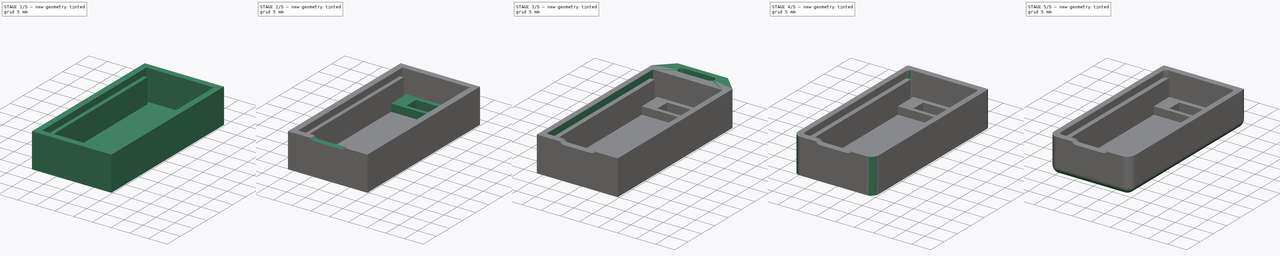
[diagram: build sequence overview — one tinted view per stage of 5, left to right]
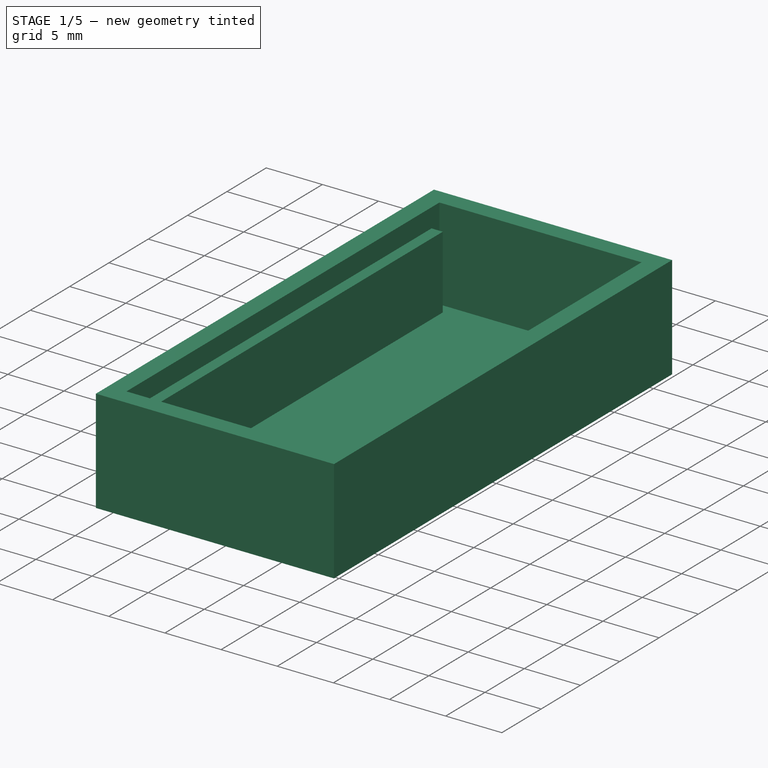
[diagram: stage 1 of 5 — iso view after this stage's code; geometry added in this stage tinted green]
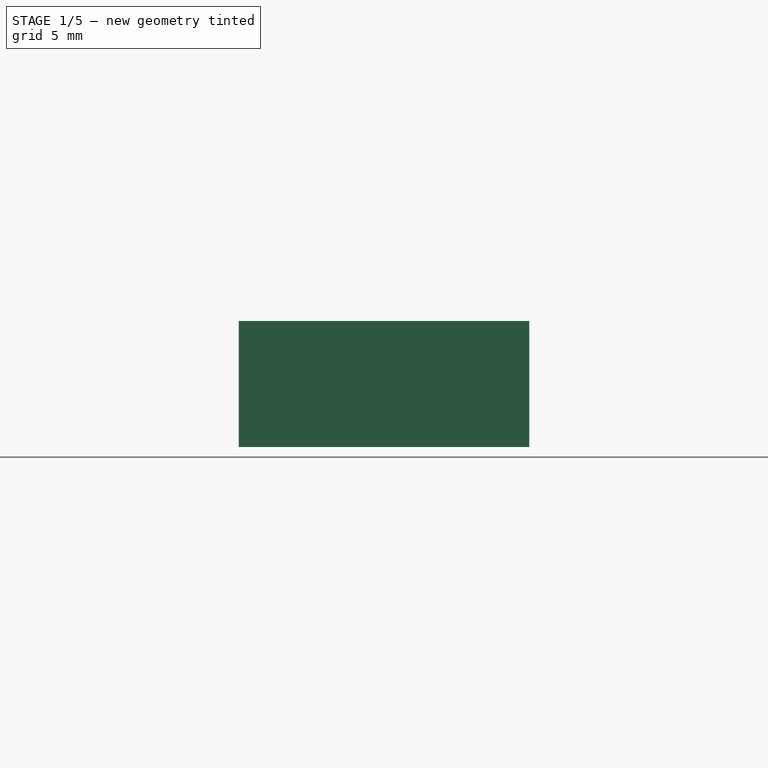
[diagram: stage 1 of 5 — front view after this stage's code; geometry added in this stage tinted green]
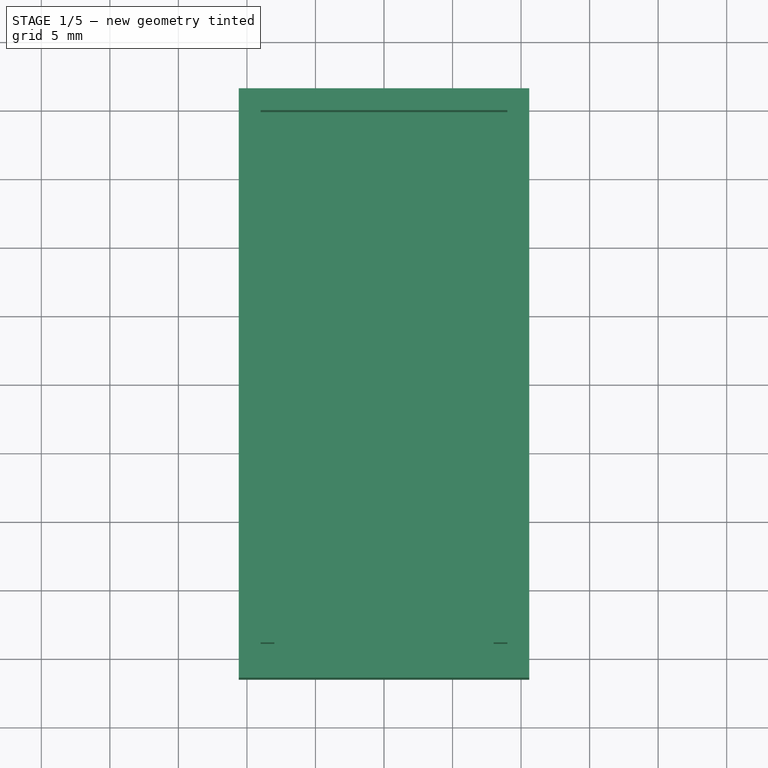
[diagram: stage 1 of 5 — top view after this stage's code; geometry added in this stage tinted green]
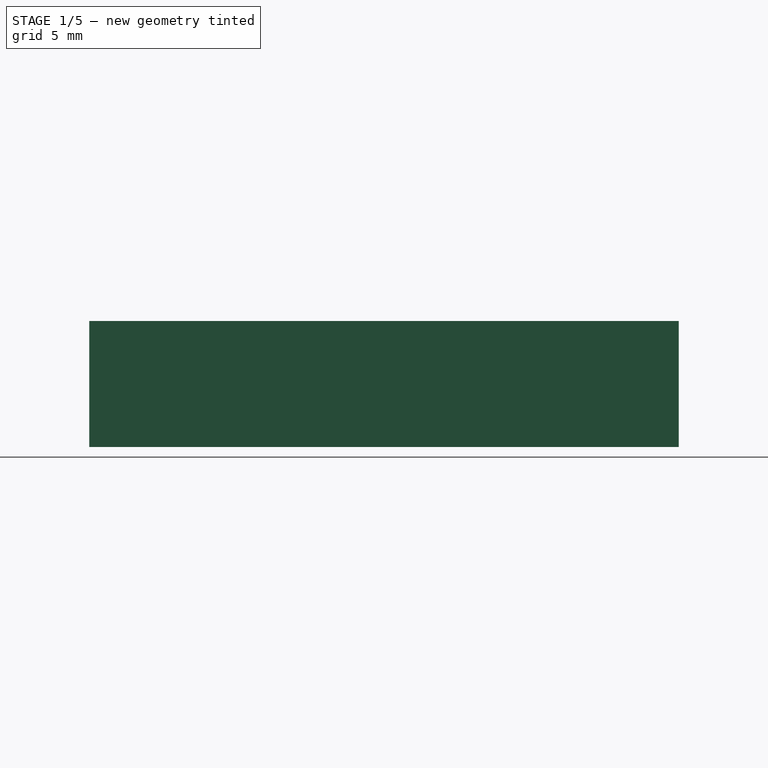
[diagram: stage 1 of 5 — right view after this stage's code; geometry added in this stage tinted green]
FCSTD DOCUMENT  (FreeCAD 1.0R39109 (Git))
Label: API Reciever
License: All rights reserved
LicenseURL: https://en.wikipedia.org/wiki/All_rights_reserved
objects: Sketcher::SketchObject×9, PartDesign::Pocket×7, PartDesign::Pad×5, PartDesign::Fillet×4, PartDesign::Body×1
note: 67 computed .brp shape members not serialized (recipe doc carries the construction recipe); baked Part::Feature solids carry a one-line shape summary decoded from their .brp

FEATURE [Sketcher::SketchObject] Sketch
  ArcFitTolerance = 1e-06
  AttachmentSupport = -> [XY_Plane]
  FullyConstrained = true
  MakeInternals = false
  MapMode = 5
  sketch-geometry (6):
    g0: LineSegment StartX=-10.6 StartY=21.5 StartZ=0 EndX=-10.6 EndY=-21.5 EndZ=0
    g1: LineSegment StartX=-10.6 StartY=-21.5 StartZ=0 EndX=10.6 EndY=-21.5 EndZ=0
    g2: LineSegment StartX=10.6 StartY=-21.5 StartZ=0 EndX=10.6 EndY=21.5 EndZ=0
    g3: LineSegment StartX=10.6 StartY=21.5 StartZ=0 EndX=-10.6 EndY=21.5 EndZ=0
    g4: LineSegment [constr] StartX=-10.6 StartY=21.5 StartZ=0 EndX=10.6 EndY=-21.5 EndZ=0
    g5: GeomPoint X=0 Y=0 Z=0
  constraints (14):
    c: Coincident(g0,g1)
    c: Coincident(g1,g2)
    c: Coincident(g2,g3)
    c: Coincident(g3,g0)
    c: Vertical(g0)
    c: Vertical(g2)
    c: Horizontal(g1)
    c: Horizontal(g3)
    c: DistanceX(g3,g3) = 21.2
    c: DistanceY(g0,g0) = 43
    c: Coincident(g4,g0)
    c: Coincident(g4,g1)
    c: Symmetric(g4,g4,g5)
    c: Coincident(g5,g-1)
FEATURE [PartDesign::Pad] Pad
  Direction = (0,0,1)
  Length = 9.2
  Length2 = 10
  Profile = -> Sketch
  ReferenceAxis = -> Sketch [N_Axis]
  Refine = true
  Suppressed = false
  Type = 0
FEATURE [Sketcher::SketchObject] Sketch001
  ArcFitTolerance = 1e-06
  FullyConstrained = true
  MakeInternals = false
  MapMode = 5
  Placement = pos=(0,0,9.2) rot=(0,0,1;0rad)
  sketch-geometry (7):
    g0: LineSegment StartX=-9 StartY=19.9 StartZ=0 EndX=-9 EndY=-19.9 EndZ=0
    g1: LineSegment StartX=-9 StartY=-19.9 StartZ=0 EndX=9 EndY=-19.9 EndZ=0
    g2: LineSegment StartX=9 StartY=-19.9 StartZ=0 EndX=9 EndY=19.9 EndZ=0
    g3: LineSegment StartX=9 StartY=19.9 StartZ=0 EndX=-9 EndY=19.9 EndZ=0
    g4: LineSegment [constr] StartX=9 StartY=1.5e-15 StartZ=0 EndX=10.6 EndY=1.5e-15 EndZ=0
    g5: GeomPoint X=10.6 Y=1.5e-15 Z=0
    g6: LineSegment [constr] StartX=3e-16 StartY=19.9 StartZ=0 EndX=3e-16 EndY=21.5 EndZ=0
  constraints (17):
    c: Coincident(g0,g1)
    c: Coincident(g1,g2)
    c: Coincident(g2,g3)
    c: Coincident(g3,g0)
    c: Vertical(g0)
    c: Vertical(g2)
    c: Horizontal(g1)
    c: Horizontal(g3)
    c: Distance(g-5,g3) = 1.6
    c: Distance(g-3,g2) = 1.6
    c: Symmetric(g2,g2,g4)
    c: Symmetric(g-3,g-3,g5)
    c: Coincident(g4,g5)
    c: Horizontal(g4)
    c: Symmetric(g3,g3,g6)
    c: Symmetric(g-5,g-5,g6)
    c: Vertical(g6)
FEATURE [PartDesign::Pocket] Pocket
  BaseFeature = -> Pad
  Direction = (0,0,-1)
  Length = 8.2
  Length2 = 5
  Profile = -> Sketch001
  ReferenceAxis = -> Sketch001 [N_Axis]
  Refine = true
  Suppressed = false
  Type = 0
FEATURE [Sketcher::SketchObject] Sketch002
  ArcFitTolerance = 1e-06
  FullyConstrained = true
  MakeInternals = false
  MapMode = 5
  Placement = pos=(0,0,1) rot=(0,0,1;0rad)
  sketch-geometry (9):
    g0: LineSegment StartX=-9 StartY=-18.9 StartZ=0 EndX=-8 EndY=-18.9 EndZ=0
    g1: LineSegment StartX=-8 StartY=-18.9 StartZ=0 EndX=-8 EndY=18.9 EndZ=0
    g2: LineSegment StartX=-8 StartY=18.9 StartZ=0 EndX=-9 EndY=18.9 EndZ=0
    g3: LineSegment StartX=-9 StartY=18.9 StartZ=0 EndX=-9 EndY=-18.9 EndZ=0
    g4: LineSegment StartX=9 StartY=-18.9 StartZ=0 EndX=9 EndY=18.9 EndZ=0
    g5: LineSegment StartX=9 StartY=18.9 StartZ=0 EndX=8 EndY=18.9 EndZ=0
    g6: LineSegment StartX=8 StartY=18.9 StartZ=0 EndX=8 EndY=-18.9 EndZ=0
    g7: LineSegment StartX=8 StartY=-18.9 StartZ=0 EndX=9 EndY=-18.9 EndZ=0
    g8: LineSegment [constr] StartX=-8 StartY=18.9 StartZ=0 EndX=8 EndY=18.9 EndZ=0
  constraints (24):
    c: Coincident(g0,g1)
    c: Coincident(g1,g2)
    c: Coincident(g2,g3)
    c: Coincident(g3,g0)
    c: Horizontal(g0)
    c: Horizontal(g2)
    c: Vertical(g1)
    c: Vertical(g3)
    c: Coincident(g0,g-3)
    c: Coincident(g4,g5)
    c: Coincident(g5,g6)
    c: Coincident(g6,g7)
    c: Coincident(g7,g4)
    c: Vertical(g4)
    c: Vertical(g6)
    c: Horizontal(g5)
    c: Horizontal(g7)
    c: Coincident(g4,g-4)
    c: Equal(g2,g5)
    c: Coincident(g8,g1)
    c: Coincident(g8,g5)
    c: Horizontal(g8)
    c: DistanceX(g2,g2) = 1
    c: PointOnObject(g-3,g2)
FEATURE [PartDesign::Pad] Pad001
  BaseFeature = -> Pocket
  Direction = (0,0,1)
  Length = 6.5
  Length2 = 10
  Profile = -> Sketch002
  ReferenceAxis = -> Sketch002 [N_Axis]
  Refine = true
  Suppressed = false
  Type = 0
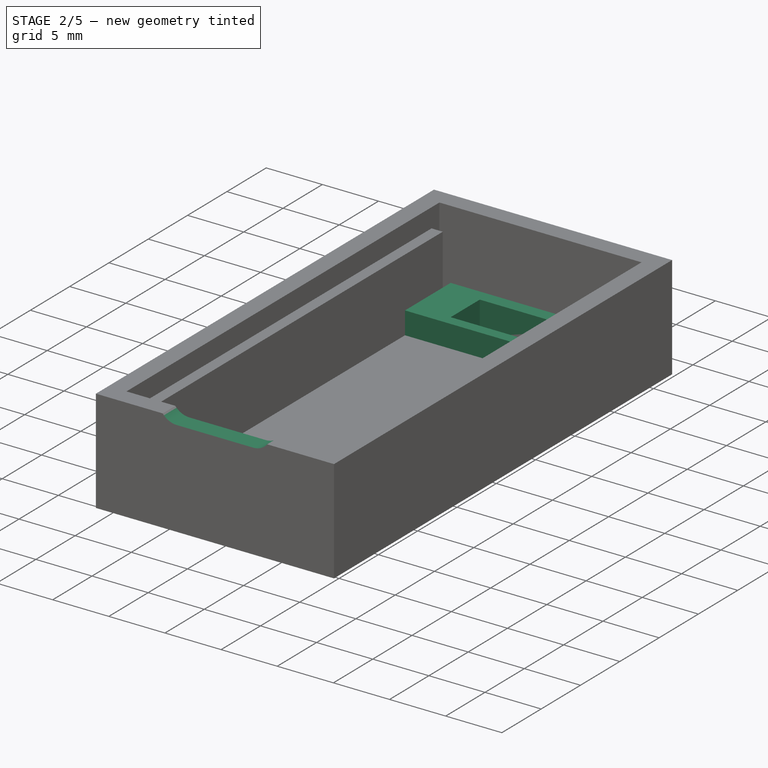
[diagram: stage 2 of 5 — iso view after this stage's code; geometry added in this stage tinted green]
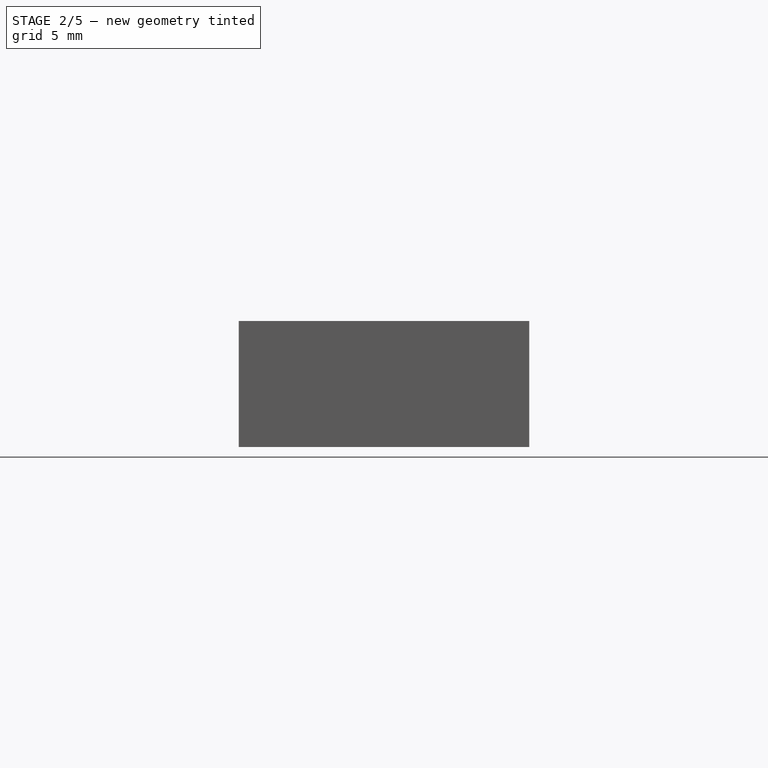
[diagram: stage 2 of 5 — front view after this stage's code; geometry added in this stage tinted green]
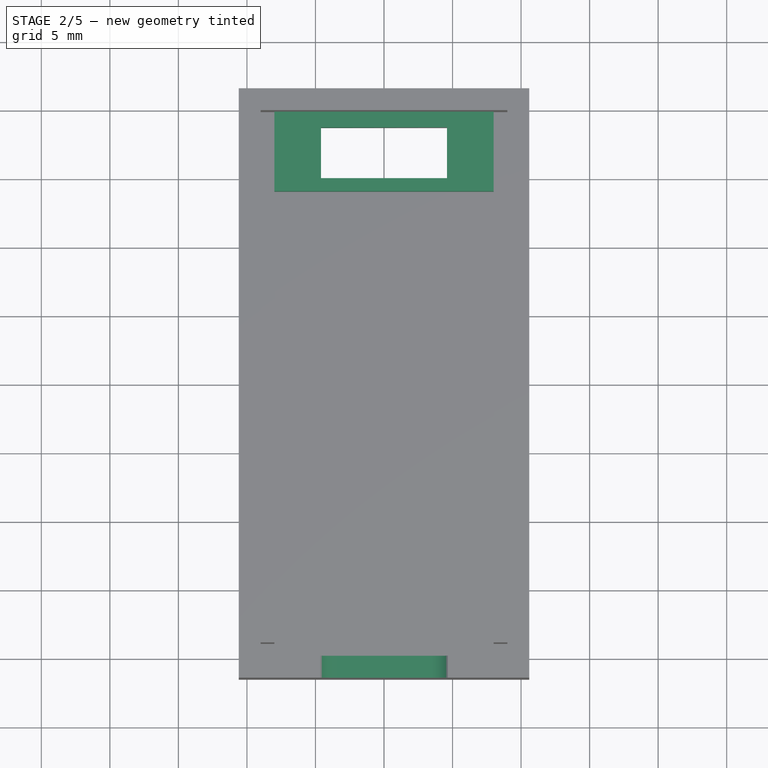
[diagram: stage 2 of 5 — top view after this stage's code; geometry added in this stage tinted green]
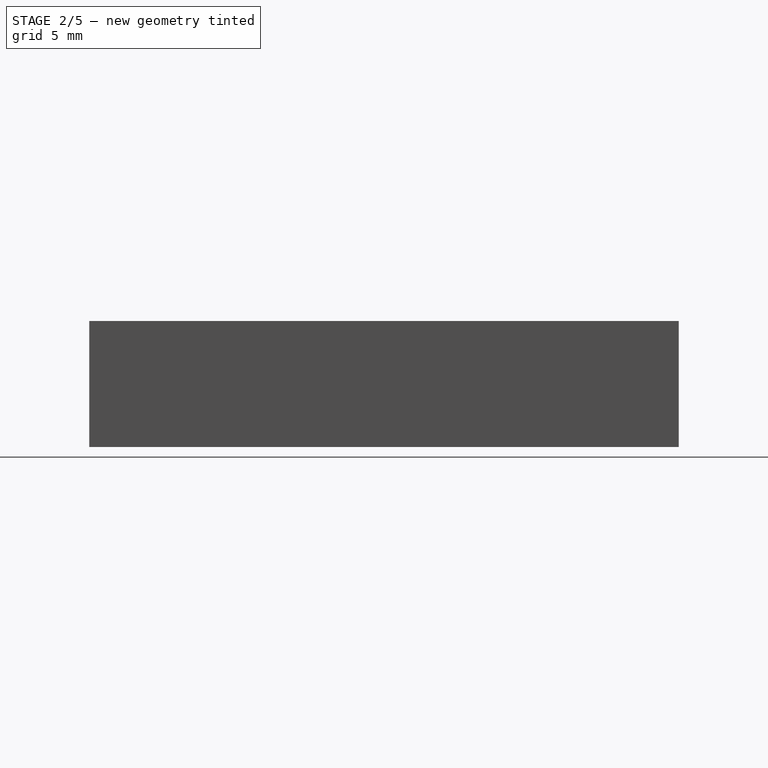
[diagram: stage 2 of 5 — right view after this stage's code; geometry added in this stage tinted green]
FEATURE [Sketcher::SketchObject] Sketch003
  ArcFitTolerance = 1e-06
  FullyConstrained = true
  MakeInternals = false
  MapMode = 5
  Placement = pos=(0,-21.5,0) rot=(1,0,0;1.5708rad)
  sketch-geometry (6):
    g0: ArcOfCircle CenterX=-3.4 CenterY=10.2 CenterZ=0 NormalX=0 NormalY=0 NormalZ=1 AngleXU=0 Radius=1.6 StartAngle=1.5708 EndAngle=4.71239
    g1: ArcOfCircle CenterX=3.4 CenterY=10.2 CenterZ=0 NormalX=0 NormalY=0 NormalZ=1 AngleXU=0 Radius=1.6 StartAngle=4.71239 EndAngle=7.85398
    g2: LineSegment StartX=-3.4 StartY=11.8 StartZ=0 EndX=3.4 EndY=11.8 EndZ=0
    g3: LineSegment StartX=-3.4 StartY=8.6 StartZ=0 EndX=3.4 EndY=8.6 EndZ=0
    g4: LineSegment [constr] StartX=-3.4 StartY=10.2 StartZ=0 EndX=3.4 EndY=10.2 EndZ=0
    g5: LineSegment [constr] StartX=3e-16 StartY=10.2 StartZ=0 EndX=3e-16 EndY=9.2 EndZ=0
  constraints (14):
    c: Tangent(g0,g2) = 1.5708
    c: Tangent(g0,g3) = -1.5708
    c: Tangent(g1,g2) = 1.5708
    c: Tangent(g1,g3) = -1.5708
    c: Equal(g0,g1)
    c: Horizontal(g2)
    c: Coincident(g4,g0)
    c: Coincident(g4,g1)
    c: Radius(g1) = 1.6
    c: DistanceX(g4,g4) = 6.8
    c: Distance(g-3,g4) = 1
    c: Symmetric(g4,g4,g5)
    c: Symmetric(g-3,g-3,g5)
    c: Vertical(g5)
FEATURE [PartDesign::Pocket] Pocket001
  BaseFeature = -> Pad001
  Direction = (0,1,-2e-16)
  Length = 5
  Length2 = 5
  Profile = -> Sketch003
  ReferenceAxis = -> Sketch003 [N_Axis]
  Refine = true
  Suppressed = false
  Type = 0
FEATURE [Sketcher::SketchObject] Sketch005
  ArcFitTolerance = 1e-06
  FullyConstrained = true
  MakeInternals = false
  MapMode = 5
  Placement = pos=(0,0,1) rot=(0,0,1;0rad)
  sketch-geometry (6):
    g0: LineSegment StartX=-4.6 StartY=18.75 StartZ=0 EndX=-4.6 EndY=15.05 EndZ=0
    g1: LineSegment StartX=-4.6 StartY=15.05 StartZ=0 EndX=4.6 EndY=15.05 EndZ=0
    g2: LineSegment StartX=4.6 StartY=15.05 StartZ=0 EndX=4.6 EndY=18.75 EndZ=0
    g3: LineSegment StartX=4.6 StartY=18.75 StartZ=0 EndX=-4.6 EndY=18.75 EndZ=0
    g4: LineSegment [constr] StartX=-4.6 StartY=18.75 StartZ=0 EndX=4.6 EndY=15.05 EndZ=0
    g5: LineSegment [constr] StartX=3e-16 StartY=19.9 StartZ=0 EndX=3e-16 EndY=16.9 EndZ=0
  constraints (16):
    c: Coincident(g0,g1)
    c: Coincident(g1,g2)
    c: Coincident(g2,g3)
    c: Coincident(g3,g0)
    c: Vertical(g0)
    c: Vertical(g2)
    c: Horizontal(g1)
    c: Horizontal(g3)
    c: DistanceX(g1,g1) = 9.2
    c: DistanceY(g0,g0) = 3.7
    c: Coincident(g4,g0)
    c: Coincident(g4,g1)
    c: Symmetric(g-3,g-3,g5)
    c: Symmetric(g4,g4,g5)
    c: Vertical(g5)
    c: DistanceY(g5,g5) = 3
FEATURE [PartDesign::Pocket] Pocket003
  BaseFeature = -> Pocket001
  Direction = (0,0,-1)
  Length = 5
  Length2 = 5
  Profile = -> Sketch005
  ReferenceAxis = -> Sketch005 [N_Axis]
  Refine = true
  Suppressed = false
  Type = 0
FEATURE [Sketcher::SketchObject] Sketch006
  ArcFitTolerance = 1e-06
  AttachmentSupport = -> [Pocket003]
  ExternalGeometry = -> [Pocket003]
  FullyConstrained = false
  MakeInternals = false
  MapMode = 5
  Placement = pos=(0,0,1) rot=(0,0,1;0rad)
  sketch-geometry (8):
    g0: LineSegment StartX=-8 StartY=19.9 StartZ=0 EndX=-8 EndY=14.0924 EndZ=0
    g1: LineSegment StartX=-8 StartY=14.0924 StartZ=0 EndX=8 EndY=14.0924 EndZ=0
    g2: LineSegment StartX=8 StartY=14.0924 StartZ=0 EndX=8 EndY=19.9 EndZ=0
    g3: LineSegment StartX=8 StartY=19.9 StartZ=0 EndX=-8 EndY=19.9 EndZ=0
    g4: LineSegment StartX=-4.6 StartY=18.75 StartZ=0 EndX=-4.6 EndY=15.05 EndZ=0
    g5: LineSegment StartX=-4.6 StartY=15.05 StartZ=0 EndX=4.6 EndY=15.05 EndZ=0
    g6: LineSegment StartX=4.6 StartY=15.05 StartZ=0 EndX=4.6 EndY=18.75 EndZ=0
    g7: LineSegment StartX=4.6 StartY=18.75 StartZ=0 EndX=-4.6 EndY=18.75 EndZ=0
  constraints (21):
    c: PointOnObject(g0,g-3)
    c: Vertical(g0)
    c: Coincident(g1,g0)
    c: Horizontal(g1)
    c: Coincident(g2,g1)
    c: PointOnObject(g2,g-3)
    c: Vertical(g2)
    c: Coincident(g3,g0)
    c: PointOnObject(g-5,g2)
    c: Coincident(g2,g3)
    c: PointOnObject(g-4,g0)
    c: Coincident(g4,g5)
    c: Coincident(g5,g6)
    c: Coincident(g6,g7)
    c: Coincident(g7,g4)
    c: Vertical(g4)
    c: Vertical(g6)
    c: Horizontal(g5)
    c: Horizontal(g7)
    c: Coincident(g4,g-7)
    c: Coincident(g5,g-6)
FEATURE [PartDesign::Pad] Pad002
  BaseFeature = -> Pocket003
  Direction = (0,0,1)
  Length = 2
  Length2 = 10
  Profile = -> Sketch006
  ReferenceAxis = -> Sketch006 [N_Axis]
  Refine = true
  Suppressed = false
  Type = 0
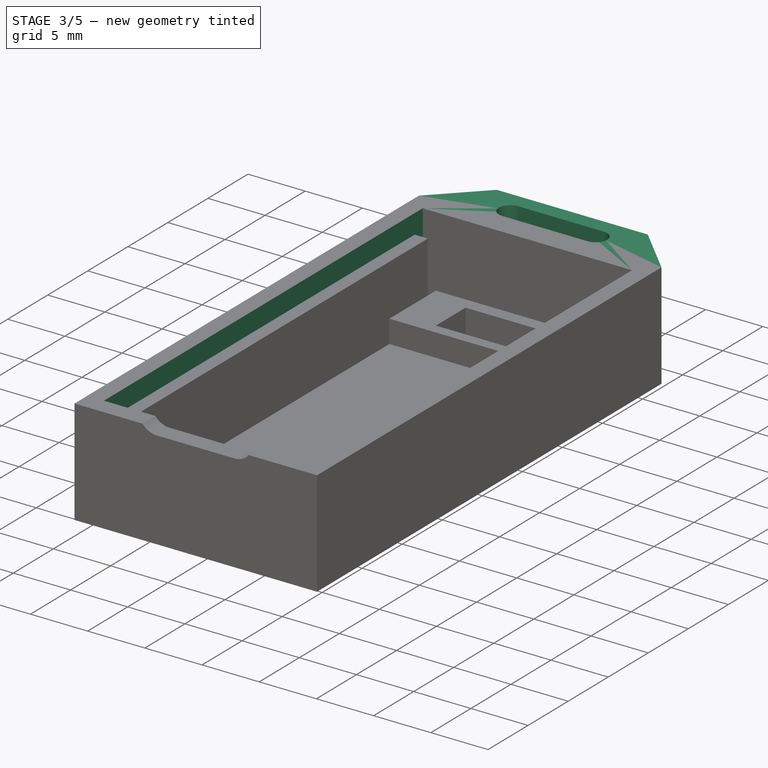
[diagram: stage 3 of 5 — iso view after this stage's code; geometry added in this stage tinted green]
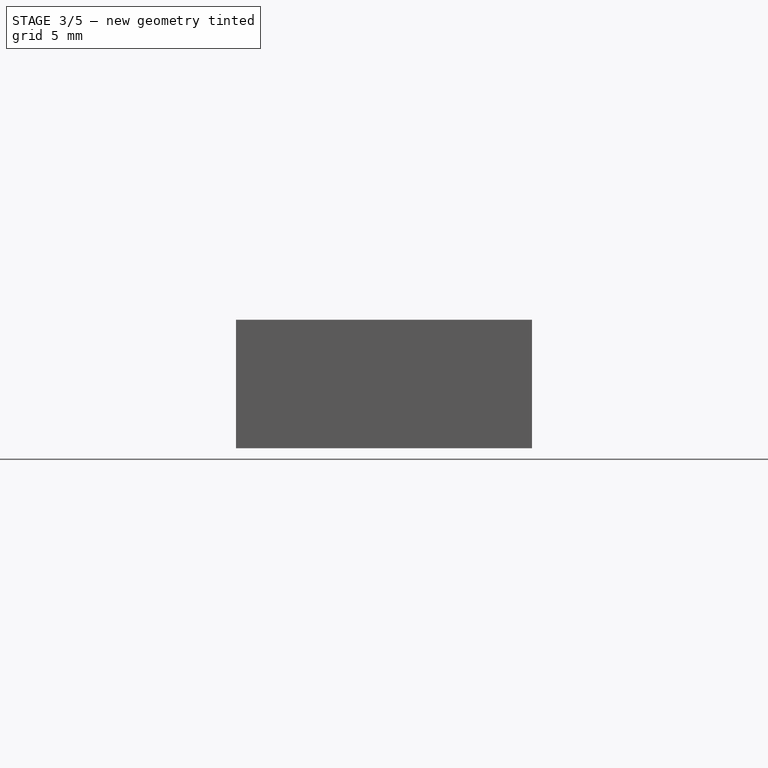
[diagram: stage 3 of 5 — front view after this stage's code; geometry added in this stage tinted green]
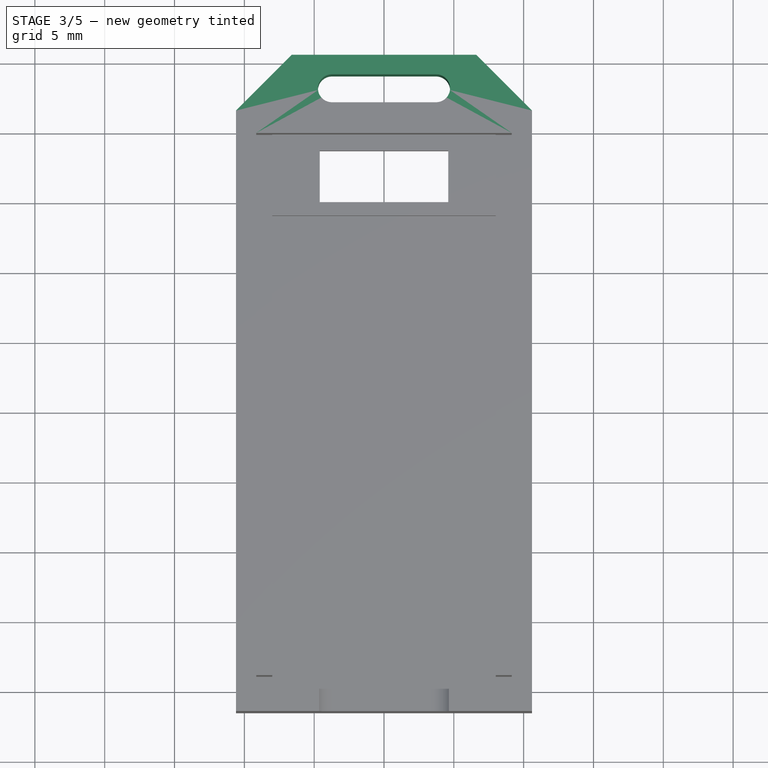
[diagram: stage 3 of 5 — top view after this stage's code; geometry added in this stage tinted green]
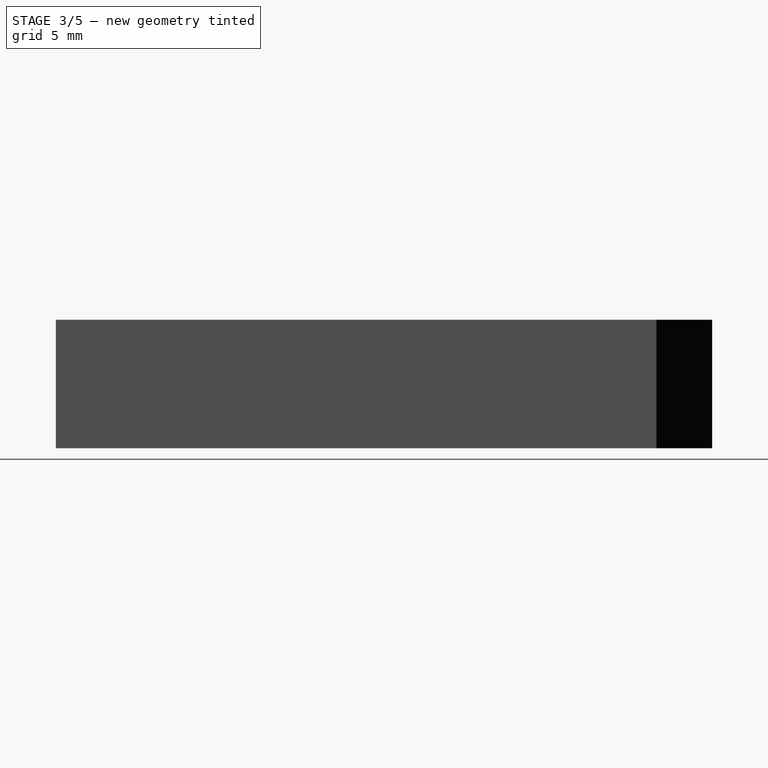
[diagram: stage 3 of 5 — right view after this stage's code; geometry added in this stage tinted green]
FEATURE [PartDesign::Pocket] Pocket004
  BaseFeature = -> Pad002
  Direction = (-1,0,0)
  Length = 0.15
  Length2 = 5
  Profile = -> Pad002 [Face13]
  Refine = true
  Suppressed = false
  Type = 0
FEATURE [PartDesign::Pocket] Pocket005
  BaseFeature = -> Pocket004
  Direction = (1,0,0)
  Length = 0.15
  Length2 = 5
  Profile = -> Pocket004 [Face14]
  Refine = true
  Suppressed = false
  Type = 0
FEATURE [Sketcher::SketchObject] Sketch007
  ArcFitTolerance = 1e-06
  AttachmentSupport = -> [Pocket005]
  ExternalGeometry = -> [Pocket005]
  FullyConstrained = true
  MakeInternals = false
  MapMode = 5
  Placement = pos=(0,0,9.2) rot=(0,0,1;0rad)
  sketch-geometry (5):
    g0: LineSegment StartX=-10.6 StartY=21.5 StartZ=0 EndX=10.6 EndY=21.5 EndZ=0
    g1: LineSegment StartX=-10.6 StartY=21.5 StartZ=0 EndX=-6.6 EndY=25.5 EndZ=0
    g2: LineSegment StartX=-6.6 StartY=25.5 StartZ=0 EndX=6.6 EndY=25.5 EndZ=0
    g3: LineSegment StartX=6.6 StartY=25.5 StartZ=0 EndX=10.6 EndY=21.5 EndZ=0
    g4: LineSegment [constr] StartX=-6e-16 StartY=25.5 StartZ=0 EndX=-6e-16 EndY=21.5 EndZ=0
  constraints (12):
    c: Coincident(g0,g-3)
    c: Coincident(g0,g-3)
    c: Coincident(g1,g0)
    c: Horizontal(g2)
    c: Coincident(g3,g2)
    c: Coincident(g3,g0)
    c: Symmetric(g2,g2,g4)
    c: Symmetric(g0,g0,g4)
    c: Vertical(g4)
    c: Coincident(g1,g2)
    c: DistanceY(g4,g4) = 4
    c: DistanceX(g0,g1) = 4
FEATURE [PartDesign::Pad] Pad003
  BaseFeature = -> Pocket005
  Direction = (0,0,1)
  Length = 10
  Length2 = 10
  Profile = -> Sketch007
  ReferenceAxis = -> Sketch007 [N_Axis]
  Refine = true
  Reversed = true
  Suppressed = false
  Type = 3
  UpToFace = -> Pocket005 [Face4]
FEATURE [Sketcher::SketchObject] Sketch008
  ArcFitTolerance = 1e-06
  AttachmentSupport = -> [Pad003]
  ExternalGeometry = -> [Pad003]
  FullyConstrained = false
  MakeInternals = false
  MapMode = 5
  Placement = pos=(0,0,9.2) rot=(0,0,1;0rad)
  sketch-geometry (5):
    g0: ArcOfCircle CenterX=-3.73007 CenterY=23.1 CenterZ=0 NormalX=0 NormalY=0 NormalZ=1 AngleXU=0 Radius=1 StartAngle=1.5708 EndAngle=4.71239
    g1: ArcOfCircle CenterX=3.73007 CenterY=23.1 CenterZ=0 NormalX=0 NormalY=0 NormalZ=1 AngleXU=0 Radius=1 StartAngle=4.71239 EndAngle=7.85398
    g2: LineSegment StartX=-3.73007 StartY=24.1 StartZ=0 EndX=3.73007 EndY=24.1 EndZ=0
    g3: LineSegment StartX=-3.73007 StartY=22.1 StartZ=0 EndX=3.73007 EndY=22.1 EndZ=0
    g4: LineSegment [constr] StartX=-1.2e-15 StartY=24.1 StartZ=0 EndX=-1.2e-15 EndY=25.5 EndZ=0
  constraints (11):
    c: Tangent(g0,g2) = 1.5708
    c: Tangent(g0,g3) = -1.5708
    c: Tangent(g1,g2) = 1.5708
    c: Tangent(g1,g3) = -1.5708
    c: Equal(g0,g1)
    c: Horizontal(g2)
    c: Distance(g-3,g2) = 1.4
    c: Radius(g0) = 1
    c: Symmetric(g2,g2,g4)
    c: Symmetric(g-3,g-3,g4)
    c: Vertical(g4)
FEATURE [PartDesign::Pocket] Pocket006
  BaseFeature = -> Pad003
  Direction = (0,0,-1)
  Length = 5
  Length2 = 5
  Profile = -> Sketch008
  ReferenceAxis = -> Sketch008 [N_Axis]
  Refine = true
  Suppressed = false
  Type = 1
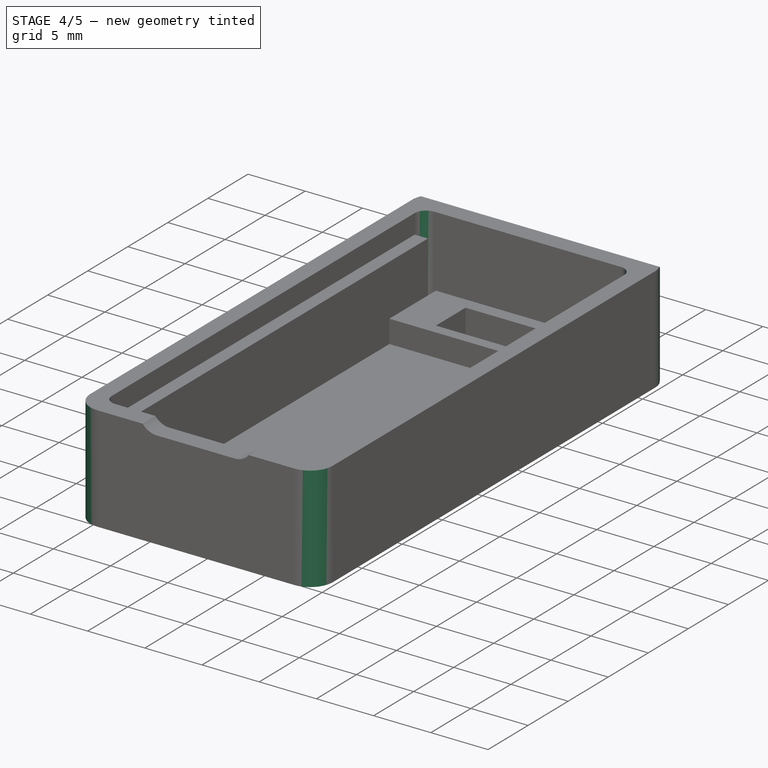
[diagram: stage 4 of 5 — iso view after this stage's code; geometry added in this stage tinted green]
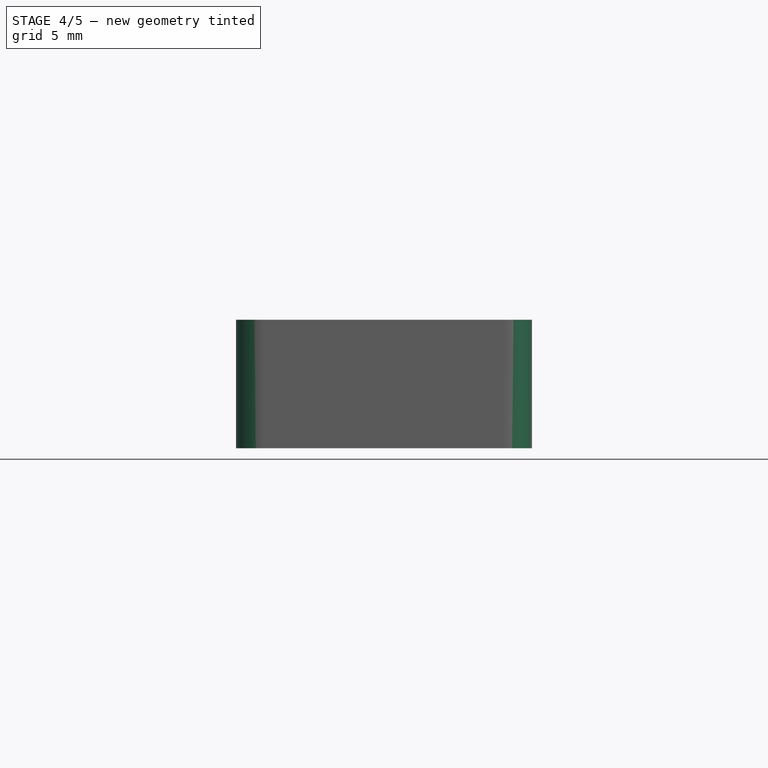
[diagram: stage 4 of 5 — front view after this stage's code; geometry added in this stage tinted green]
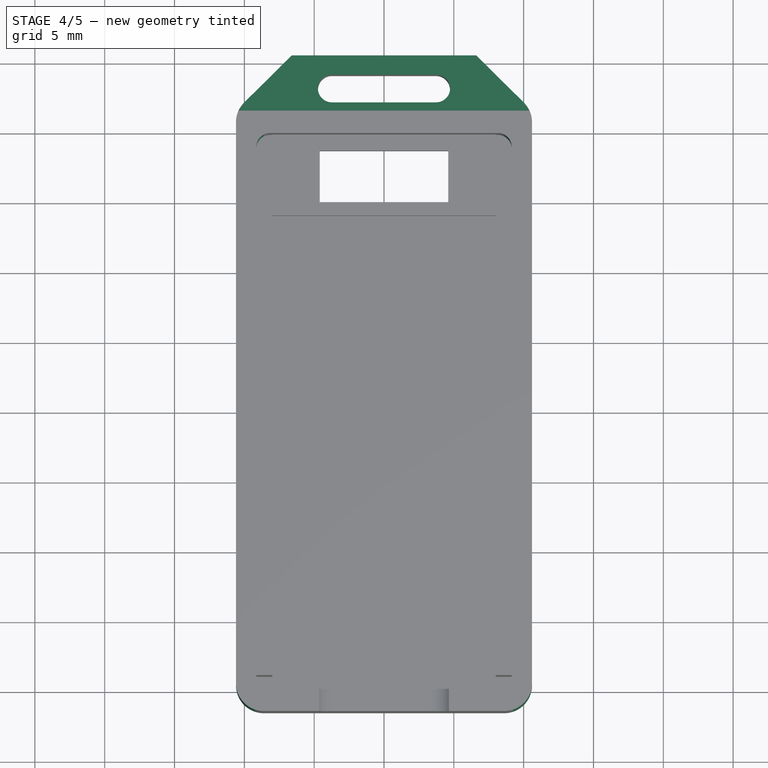
[diagram: stage 4 of 5 — top view after this stage's code; geometry added in this stage tinted green]
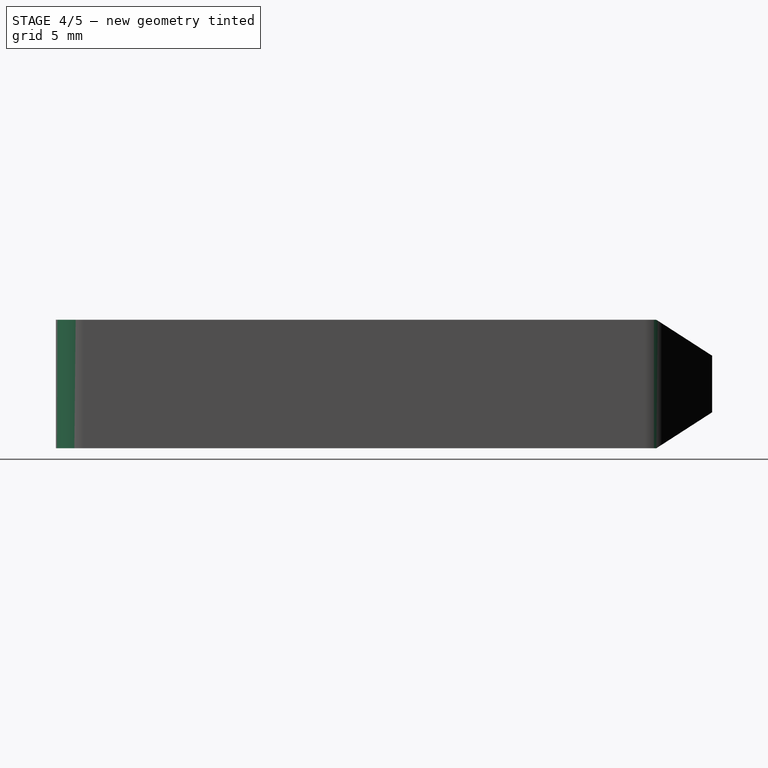
[diagram: stage 4 of 5 — right view after this stage's code; geometry added in this stage tinted green]
FEATURE [Sketcher::SketchObject] Sketch009
  ArcFitTolerance = 1e-06
  AttachmentSupport = -> [Pocket006]
  ExternalGeometry = -> [Pocket006]
  FullyConstrained = false
  MakeInternals = false
  MapMode = 5
  Placement = pos=(10.6,0,0) rot=(0.57735,0.57735,0.57735;2.0944rad)
  sketch-geometry (10):
    g0: LineSegment StartX=21.5 StartY=9.2 StartZ=0 EndX=27.0877 EndY=5.6 EndZ=0
    g1: LineSegment StartX=27.0877 StartY=5.6 StartZ=0 EndX=27.0877 EndY=3.6 EndZ=0
    g2: LineSegment StartX=27.0877 StartY=3.6 StartZ=0 EndX=21.5 EndY=0 EndZ=0
    g3: LineSegment StartX=21.5 StartY=0 StartZ=0 EndX=21.5 EndY=-2 EndZ=0
    g4: LineSegment StartX=21.5 StartY=-2 StartZ=0 EndX=29.4156 EndY=-2 EndZ=0
    g5: LineSegment StartX=29.4156 StartY=-2 StartZ=0 EndX=29.4156 EndY=11.2 EndZ=0
    g6: LineSegment StartX=29.4156 StartY=11.2 StartZ=0 EndX=21.5 EndY=11.2 EndZ=0
    g7: LineSegment StartX=21.5 StartY=11.2 StartZ=0 EndX=21.5 EndY=9.2 EndZ=0
    g8: LineSegment [constr] StartX=21.5 StartY=4.6 StartZ=0 EndX=27.0877 EndY=4.6 EndZ=0
    g9: GeomPoint X=27.0877 Y=4.6 Z=0
  constraints (23):
    c: Coincident(g0,g-3)
    c: Vertical(g1)
    c: Coincident(g2,g-3)
    c: Coincident(g3,g2)
    c: Coincident(g4,g3)
    c: Horizontal(g4)
    c: Coincident(g5,g4)
    c: Vertical(g5)
    c: Coincident(g6,g5)
    c: Horizontal(g6)
    c: Coincident(g7,g6)
    c: Coincident(g7,g0)
    c: Vertical(g7)
    c: Vertical(g3)
    c: Equal(g7,g3)
    c: Equal(g1,g7)
    c: DistanceY(g1,g1) = 2
    c: Coincident(g2,g1)
    c: Coincident(g1,g0)
    c: Symmetric(g-3,g-3,g8)
    c: Symmetric(g1,g1,g9)
    c: Coincident(g9,g8)
    c: Horizontal(g8)
FEATURE [PartDesign::Pocket] Pocket007
  BaseFeature = -> Pocket006
  Direction = (-1,0,0)
  Length = 5
  Length2 = 5
  Profile = -> Sketch009
  ReferenceAxis = -> Sketch009 [N_Axis]
  Refine = true
  Suppressed = false
  Type = 1
FEATURE [PartDesign::Fillet] Fillet
  Base = -> Pocket007 [Edge59,Edge57,Edge60,Edge66]
  BaseFeature = -> Pocket007
  Radius = 1
  Refine = true
  SupportTransform = false
  Suppressed = false
  UseAllEdges = false
FEATURE [PartDesign::Fillet] Fillet001
  Base = -> Fillet [Edge31,Edge34,Edge38,Edge56]
  BaseFeature = -> Fillet
  Radius = 2
  Refine = true
  SupportTransform = false
  Suppressed = false
  UseAllEdges = false
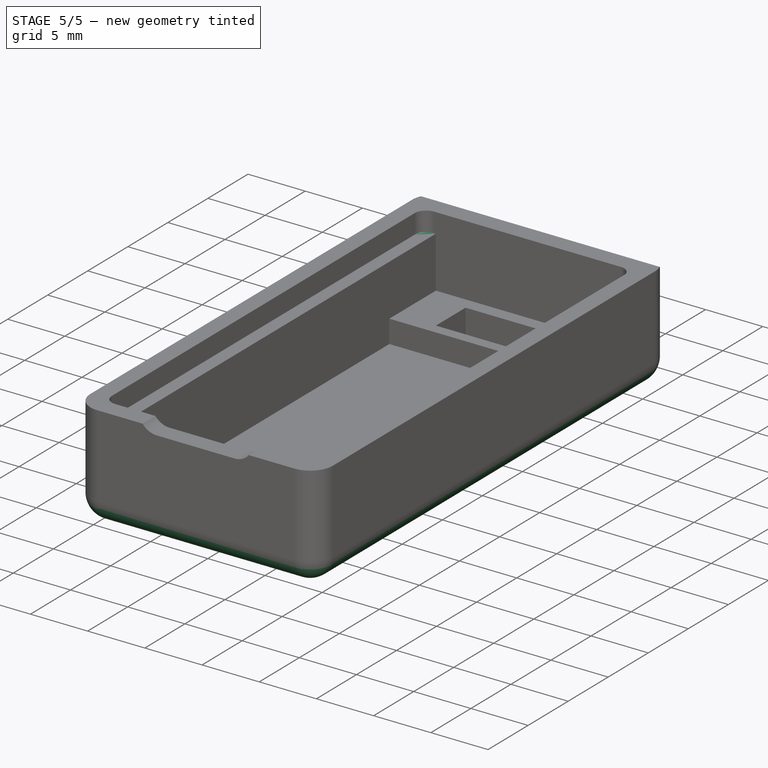
[diagram: stage 5 of 5 — iso view after this stage's code; geometry added in this stage tinted green]
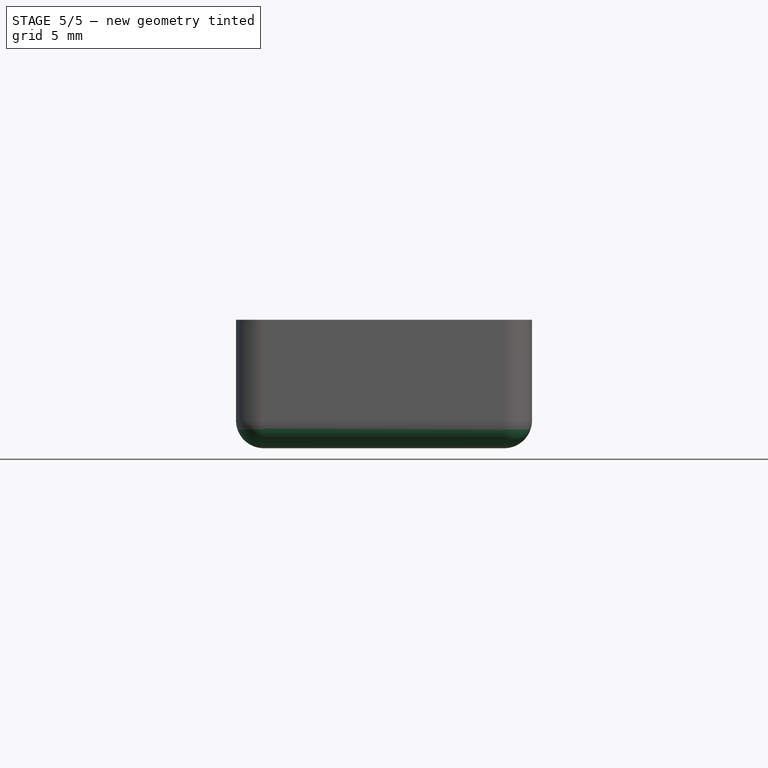
[diagram: stage 5 of 5 — front view after this stage's code; geometry added in this stage tinted green]
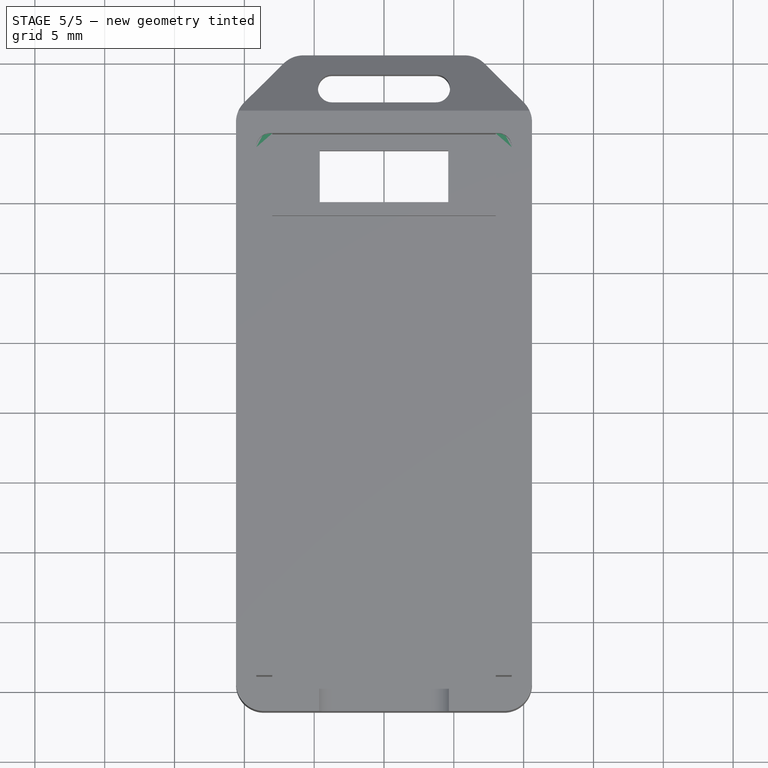
[diagram: stage 5 of 5 — top view after this stage's code; geometry added in this stage tinted green]
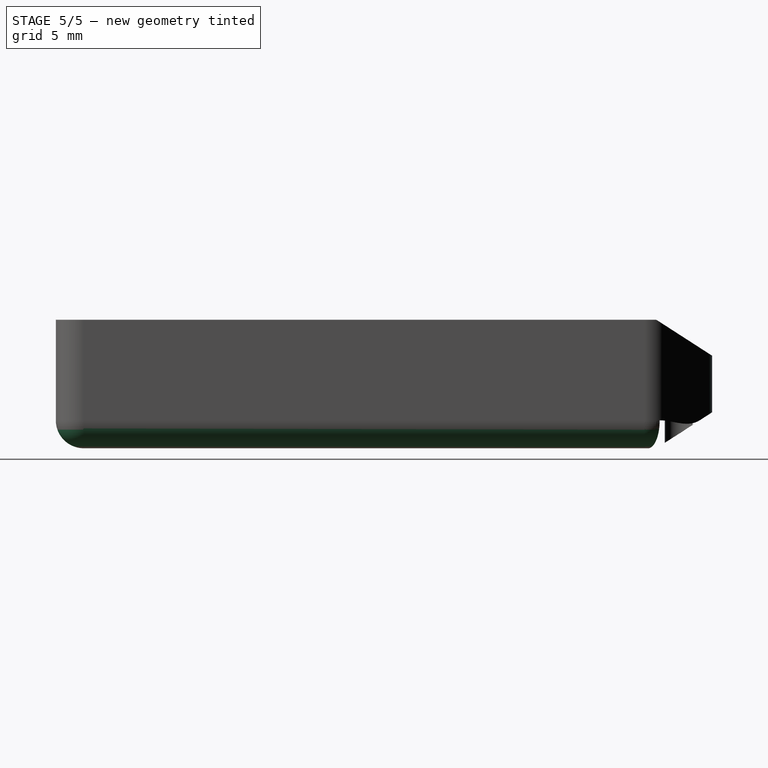
[diagram: stage 5 of 5 — right view after this stage's code; geometry added in this stage tinted green]
FEATURE [PartDesign::Fillet] Fillet002
  Base = -> Fillet001 [Edge62,Edge70,Edge21,Edge27,Edge31,Edge55,Edge79,Edge38]
  BaseFeature = -> Fillet001
  Radius = 2
  Refine = true
  SupportTransform = false
  Suppressed = false
  UseAllEdges = false
FEATURE [PartDesign::Fillet] Fillet003
  Base = -> Fillet002 [Edge123,Edge127]
  BaseFeature = -> Fillet002
  Radius = 2
  Refine = true
  SupportTransform = false
  Suppressed = false
  UseAllEdges = false
FEATURE [PartDesign::Pad] Pad004
  BaseFeature = -> Fillet003
  Direction = (0,0,1)
  Length = 10
  Length2 = 10
  Profile = -> Fillet003 [Face48,Face46]
  Refine = true
  Suppressed = false
  Type = 3
  UpToFace = -> Fillet003 [Face54]
FEATURE [PartDesign::Body] Body
  AllowCompound = false
  Group = -> [Sketch,Pad,Sketch001,Pocket,Sketch002,Pad001,Sketch003,Pocket001,Sketch005,Pocket003,Sketch006,Pad002,Pocket004,Pocket005,Sketch007,Pad003,Sketch008,Pocket006,Sketch009,Pocket007,Fillet,Fillet001,Fillet002,Fillet003,Pad004]
  Origin = -> Origin
  Tip = -> Pad004
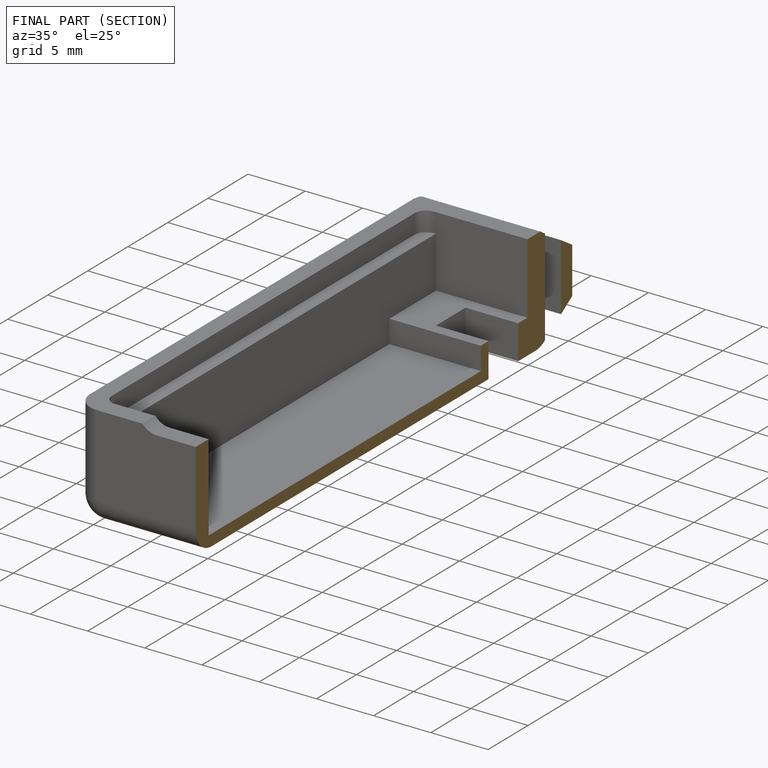
[diagram: finished part — half-section view (interior)]
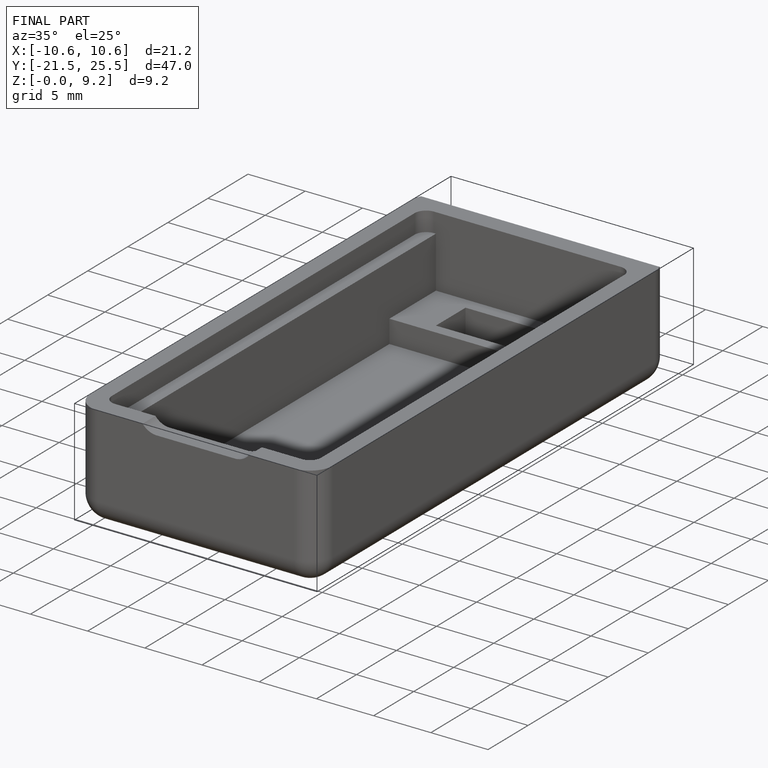
[diagram: finished part — iso view with bounding-box wireframe]
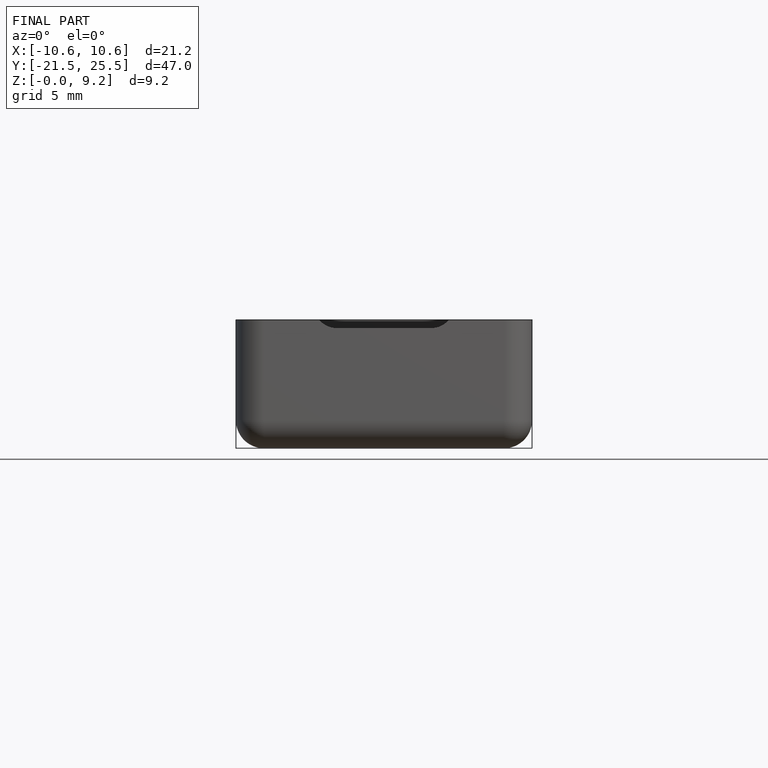
[diagram: finished part — front view with bounding-box wireframe]
